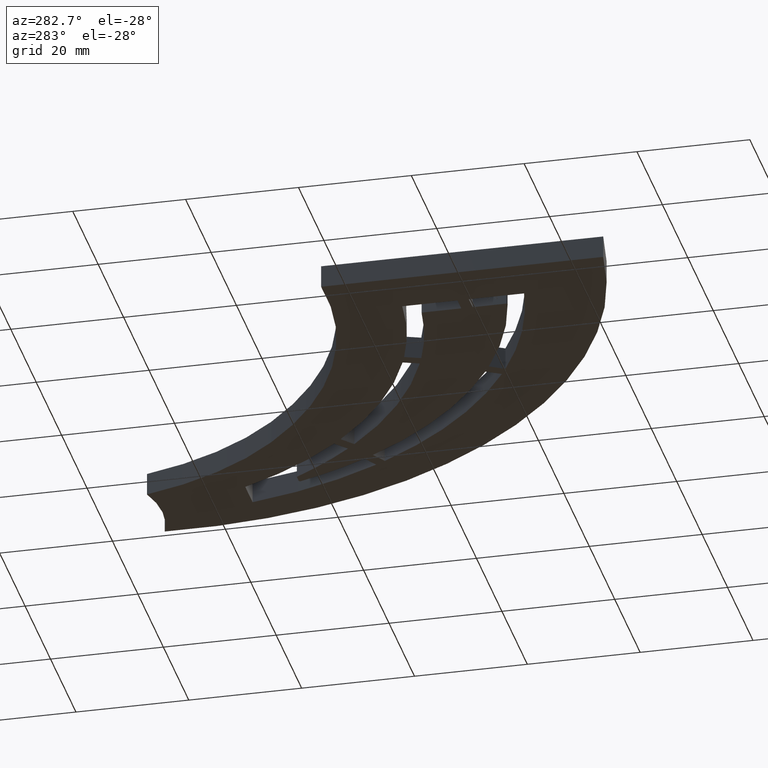
[diagram: clean part render]
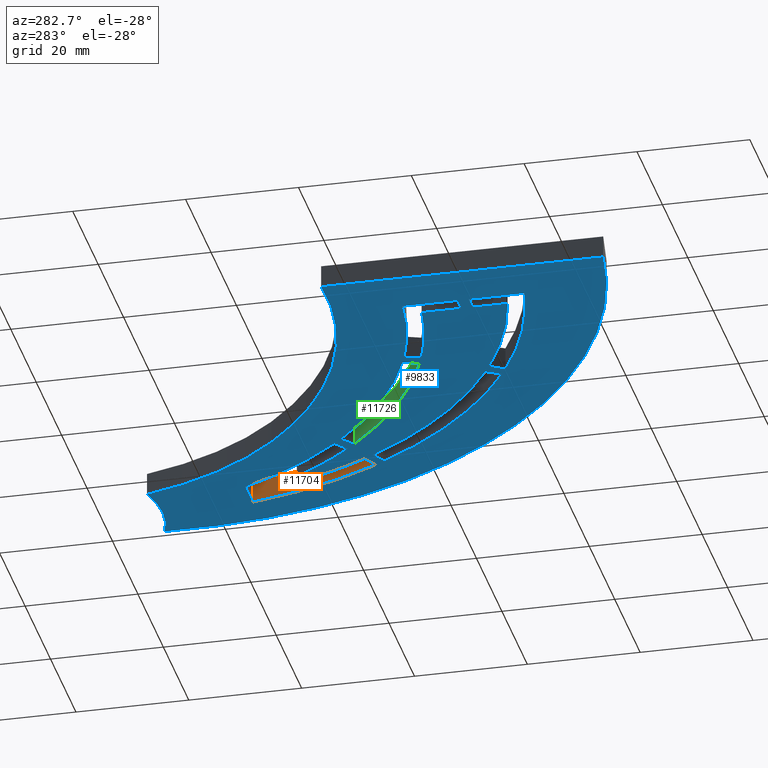
[diagram: same view with three faces highlighted in distinct colors, each labeled with its STEP entity id]
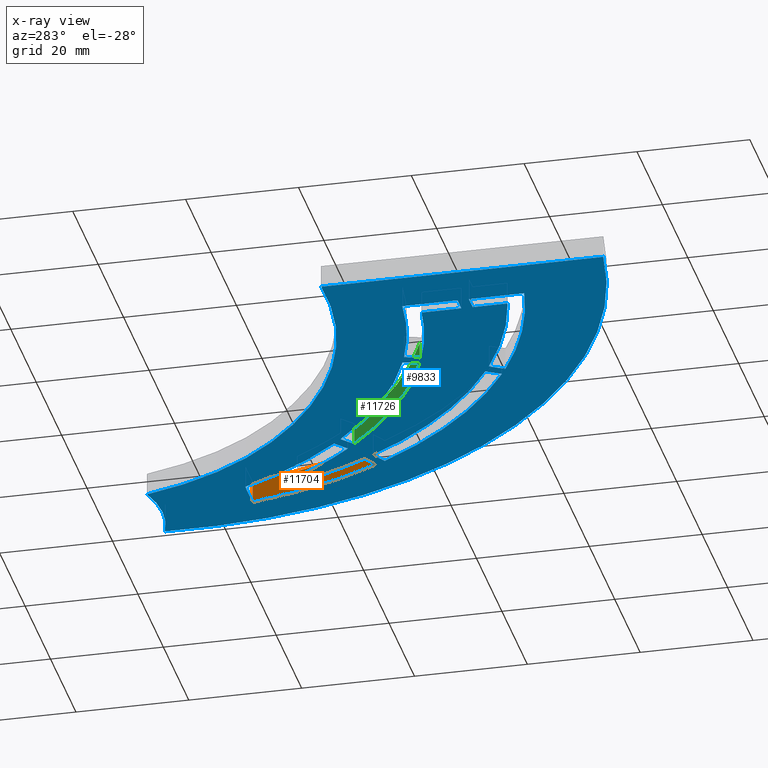
[diagram: x-ray of the same camera — body ghosted, the three highlighted faces saturated]
A machine part, auxiliary view with three faces highlighted in distinct colors.
The next image is the same camera in x-ray (body ghosted, the three faces saturated) — at least one of them is partly hidden behind the body in this view.
Their STEP definitions:

[orange] entity #11704 — the highlighted cylindrical surface (partial cylindrical patch) has radius 78.5 mm, axis along (-0, -0, -1).
#631 = EDGE_LOOP ( 'NONE', ( #7595, #1268, #2047, #3435 ) ) ;
#639 = CIRCLE ( 'NONE', #12659, 78.49999999999998579 ) ;
#908 = VECTOR ( 'NONE', #7900, 1000.000000000000000 ) ;
#1019 = EDGE_CURVE ( 'NONE', #8075, #1123, #7921, .T. ) ;
#1123 = VERTEX_POINT ( 'NONE', #12971 ) ;
#1251 = FACE_OUTER_BOUND ( 'NONE', #631, .T. ) ;
#1268 = ORIENTED_EDGE ( 'NONE', *, *, #1019, .F. ) ;
#1776 = DIRECTION ( 'NONE',  ( 1.000000000000000000, 0.000000000000000000, 0.000000000000000000 ) ) ;
#2047 = ORIENTED_EDGE ( 'NONE', *, *, #8481, .T. ) ;
#2723 = DIRECTION ( 'NONE',  ( 1.000000000000000000, 0.000000000000000000, 0.000000000000000000 ) ) ;
#2828 = CYLINDRICAL_SURFACE ( 'NONE', #5482, 78.49999999999998579 ) ;
#3435 = ORIENTED_EDGE ( 'NONE', *, *, #5704, .T. ) ;
#5081 = LINE ( 'NONE', #7545, #5390 ) ;
#5233 = CARTESIAN_POINT ( 'NONE',  ( -2.274320155918185815, 68.81855391245915143, 2.000000000000000000 ) ) ;
#5281 = DIRECTION ( 'NONE',  ( -0.000000000000000000, -0.000000000000000000, -1.000000000000000000 ) ) ;
#5390 = VECTOR ( 'NONE', #6410, 1000.000000000000000 ) ;
#5482 = AXIS2_PLACEMENT_3D ( 'NONE', #5233, #5281, #10392 ) ;
#5704 = EDGE_CURVE ( 'NONE', #11897, #12843, #5081, .T. ) ;
#5775 = DIRECTION ( 'NONE',  ( -0.000000000000000000, 0.000000000000000000, 1.000000000000000000 ) ) ;
#5805 = CARTESIAN_POINT ( 'NONE',  ( 74.81433309437242940, 54.00000000000000711, -2.000000000000000000 ) ) ;
#6410 = DIRECTION ( 'NONE',  ( -0.000000000000000000, -0.000000000000000000, -1.000000000000000000 ) ) ;
#6850 = DIRECTION ( 'NONE',  ( -0.000000000000000000, 0.000000000000000000, 1.000000000000000000 ) ) ;
#7001 = CARTESIAN_POINT ( 'NONE',  ( 74.81433309437242940, 54.00000000000000711, 2.000000000000000000 ) ) ;
#7545 = CARTESIAN_POINT ( 'NONE',  ( 74.81433309437242940, 54.00000000000000711, 2.000000000000000000 ) ) ;
#7595 = ORIENTED_EDGE ( 'NONE', *, *, #9235, .F. ) ;
#7725 = CARTESIAN_POINT ( 'NONE',  ( 66.00873501796486664, 30.09292446476082361, 2.000000000000000000 ) ) ;
#7855 = AXIS2_PLACEMENT_3D ( 'NONE', #12976, #6850, #1776 ) ;
#7900 = DIRECTION ( 'NONE',  ( -0.000000000000000000, -0.000000000000000000, -1.000000000000000000 ) ) ;
#7921 = LINE ( 'NONE', #7725, #908 ) ;
#8075 = VERTEX_POINT ( 'NONE', #12436 ) ;
#8481 = EDGE_CURVE ( 'NONE', #8075, #11897, #639, .T. ) ;
#9235 = EDGE_CURVE ( 'NONE', #1123, #12843, #9748, .T. ) ;
#9746 = CARTESIAN_POINT ( 'NONE',  ( -2.274320155918185815, 68.81855391245915143, 2.000000000000000000 ) ) ;
#9748 = CIRCLE ( 'NONE', #7855, 78.49999999999998579 ) ;
#10392 = DIRECTION ( 'NONE',  ( -1.000000000000000000, 0.000000000000000000, 0.000000000000000000 ) ) ;
#11704 = ADVANCED_FACE ( 'NONE', ( #1251 ), #2828, .F. ) ;
#11897 = VERTEX_POINT ( 'NONE', #7001 ) ;
#12436 = CARTESIAN_POINT ( 'NONE',  ( 66.00873501796486664, 30.09292446476082361, 2.000000000000000000 ) ) ;
#12659 = AXIS2_PLACEMENT_3D ( 'NONE', #9746, #5775, #2723 ) ;
#12843 = VERTEX_POINT ( 'NONE', #5805 ) ;
#12971 = CARTESIAN_POINT ( 'NONE',  ( 66.00873501796486664, 30.09292446476082361, -2.000000000000000000 ) ) ;
#12976 = CARTESIAN_POINT ( 'NONE',  ( -2.274320155918185815, 68.81855391245915143, -2.000000000000000000 ) ) ;

[blue] entity #9833 — the highlighted planar face has unit normal (-0, 0, 1).
#18 = CARTESIAN_POINT ( 'NONE',  ( 10.09999999999999964, 3.100000000000001865, -2.000000000000000000 ) ) ;
#63 = EDGE_CURVE ( 'NONE', #2170, #1277, #8363, .T. ) ;
#123 = ORIENTED_EDGE ( 'NONE', *, *, #7916, .F. ) ;
#128 = LINE ( 'NONE', #9469, #6667 ) ;
#152 = CARTESIAN_POINT ( 'NONE',  ( 34.99996197542167664, 3.161277910388546442, -2.000000000000000000 ) ) ;
#155 = EDGE_CURVE ( 'NONE', #8738, #11945, #6466, .T. ) ;
#161 = CIRCLE ( 'NONE', #4793, 72.99999999999998579 ) ;
#182 = DIRECTION ( 'NONE',  ( 0.7683469671253021493, -0.6400335445188398698, 0.000000000000000000 ) ) ;
#268 = VERTEX_POINT ( 'NONE', #18 ) ;
#312 = ORIENTED_EDGE ( 'NONE', *, *, #5632, .T. ) ;
#321 = LINE ( 'NONE', #2803, #5441 ) ;
#341 = VERTEX_POINT ( 'NONE', #2160 ) ;
#409 = ORIENTED_EDGE ( 'NONE', *, *, #5616, .F. ) ;
#428 = VERTEX_POINT ( 'NONE', #152 ) ;
#507 = EDGE_CURVE ( 'NONE', #11223, #7141, #6144, .T. ) ;
#547 = VERTEX_POINT ( 'NONE', #10704 ) ;
#586 = CARTESIAN_POINT ( 'NONE',  ( 3.879352446742994065, 94.89242179660072907, -2.000000000000000000 ) ) ;
#771 = VERTEX_POINT ( 'NONE', #953 ) ;
#787 = FACE_BOUND ( 'NONE', #3309, .T. ) ;
#879 = CARTESIAN_POINT ( 'NONE',  ( 10.09999999999999964, 1.100000000000000311, -2.000000000000000000 ) ) ;
#894 = CIRCLE ( 'NONE', #11917, 73.00000000000001421 ) ;
#944 = CARTESIAN_POINT ( 'NONE',  ( 10.09999999999999787, 12.90000000000000391, -2.000000000000000000 ) ) ;
#953 = CARTESIAN_POINT ( 'NONE',  ( 68.00000000000000000, 71.18900302333739205, -2.000000000000000000 ) ) ;
#1039 = DIRECTION ( 'NONE',  ( -0.000000000000000000, 0.000000000000000000, 1.000000000000000000 ) ) ;
#1123 = VERTEX_POINT ( 'NONE', #12971 ) ;
#1185 = VERTEX_POINT ( 'NONE', #879 ) ;
#1209 = ORIENTED_EDGE ( 'NONE', *, *, #3842, .F. ) ;
#1226 = CIRCLE ( 'NONE', #9149, 0.2500000000000366374 ) ;
#1230 = ORIENTED_EDGE ( 'NONE', *, *, #9235, .T. ) ;
#1277 = VERTEX_POINT ( 'NONE', #3913 ) ;
#1290 = VECTOR ( 'NONE', #11015, 1000.000000000000000 ) ;
#1292 = CARTESIAN_POINT ( 'NONE',  ( 68.85196653942389844, 44.50000000000000000, -2.000000000000000000 ) ) ;
#1309 = DIRECTION ( 'NONE',  ( -0.5000000000000017764, 0.8660254037844377084, 0.000000000000000000 ) ) ;
#1357 = CARTESIAN_POINT ( 'NONE',  ( 59.17939240146328927, 33.60345363278328534, -2.000000000000000000 ) ) ;
#1419 = CARTESIAN_POINT ( 'NONE',  ( 2.302567471051777078E-13, 44.50000000000035527, -2.000000000000000000 ) ) ;
#1512 = EDGE_CURVE ( 'NONE', #12463, #10071, #12709, .T. ) ;
#1587 = FACE_BOUND ( 'NONE', #3474, .T. ) ;
#1588 = EDGE_LOOP ( 'NONE', ( #409, #12648, #1209, #7709 ) ) ;
#1614 = DIRECTION ( 'NONE',  ( 1.000000000000000000, 0.000000000000000000, 0.000000000000000000 ) ) ;
#1620 = AXIS2_PLACEMENT_3D ( 'NONE', #11869, #11783, #1670 ) ;
#1634 = VERTEX_POINT ( 'NONE', #2695 ) ;
#1670 = DIRECTION ( 'NONE',  ( 1.000000000000000000, 0.000000000000000000, 0.000000000000000000 ) ) ;
#1690 = EDGE_CURVE ( 'NONE', #5425, #4534, #894, .T. ) ;
#1734 = ORIENTED_EDGE ( 'NONE', *, *, #4597, .T. ) ;
#1741 = CARTESIAN_POINT ( 'NONE',  ( -2.274320155918185815, 68.81855391245915143, -2.000000000000000000 ) ) ;
#1776 = DIRECTION ( 'NONE',  ( 1.000000000000000000, 0.000000000000000000, 0.000000000000000000 ) ) ;
#1835 = DIRECTION ( 'NONE',  ( 1.000000000000000000, 0.000000000000000000, 0.000000000000000000 ) ) ;
#1874 = VECTOR ( 'NONE', #2192, 1000.000000000000000 ) ;
#1898 = EDGE_CURVE ( 'NONE', #11223, #1123, #10989, .T. ) ;
#1992 = DIRECTION ( 'NONE',  ( 0.3453912201918108438, -0.9384587923901678286, 0.000000000000000000 ) ) ;
#2050 = ORIENTED_EDGE ( 'NONE', *, *, #5572, .F. ) ;
#2072 = CARTESIAN_POINT ( 'NONE',  ( 13.40190804038342876, -5.036072685718692377, -2.000000000000000000 ) ) ;
#2160 = CARTESIAN_POINT ( 'NONE',  ( 30.29382913315705039, 17.38689430305788974, -2.000000000000000000 ) ) ;
#2170 = VERTEX_POINT ( 'NONE', #8025 ) ;
#2179 = DIRECTION ( 'NONE',  ( 1.000000000000000000, 0.000000000000000000, 0.000000000000000000 ) ) ;
#2192 = DIRECTION ( 'NONE',  ( 3.325309274636090619E-14, 1.000000000000000000, 0.000000000000000000 ) ) ;
#2265 = PLANE ( 'NONE',  #9933 ) ;
#2268 = EDGE_CURVE ( 'NONE', #11491, #6599, #12568, .T. ) ;
#2281 = EDGE_CURVE ( 'NONE', #11894, #9217, #8250, .T. ) ;
#2340 = CARTESIAN_POINT ( 'NONE',  ( 55.50000000000000000, 34.06539931041405112, -2.000000000000000000 ) ) ;
#2370 = EDGE_CURVE ( 'NONE', #7141, #7613, #7756, .T. ) ;
#2390 = CARTESIAN_POINT ( 'NONE',  ( 31.33010419547926872, 14.57124240828424711, -2.000000000000000000 ) ) ;
#2421 = VERTEX_POINT ( 'NONE', #10512 ) ;
#2453 = DIRECTION ( 'NONE',  ( 1.000000000000000000, 1.445602896647341382E-16, 0.000000000000000000 ) ) ;
#2469 = VECTOR ( 'NONE', #1992, 1000.000000000000114 ) ;
#2503 = DIRECTION ( 'NONE',  ( 1.000000000000000000, 0.000000000000000000, 0.000000000000000000 ) ) ;
#2630 = LINE ( 'NONE', #11265, #11438 ) ;
#2643 = CIRCLE ( 'NONE', #11114, 75.50000000277351830 ) ;
#2660 = VECTOR ( 'NONE', #182, 1000.000000000000000 ) ;
#2695 = CARTESIAN_POINT ( 'NONE',  ( 69.01433309437241803, 54.00000000000000711, -2.000000000000000000 ) ) ;
#2696 = DIRECTION ( 'NONE',  ( 3.552713678800588651E-14, 1.000000000000000000, 0.000000000000000000 ) ) ;
#2704 = CARTESIAN_POINT ( 'NONE',  ( 13.10000000000022169, 9.933913978657852084, -2.000000000000000000 ) ) ;
#2711 = FACE_BOUND ( 'NONE', #8682, .T. ) ;
#2751 = DIRECTION ( 'NONE',  ( 1.000000000000000000, 0.000000000000000000, 0.000000000000000000 ) ) ;
#2784 = EDGE_CURVE ( 'NONE', #8738, #3568, #1226, .T. ) ;
#2803 = CARTESIAN_POINT ( 'NONE',  ( -0.000000000000000000, 54.00000000000000711, -2.000000000000000000 ) ) ;
#2810 = ORIENTED_EDGE ( 'NONE', *, *, #11713, .T. ) ;
#2844 = ORIENTED_EDGE ( 'NONE', *, *, #2281, .T. ) ;
#3181 = EDGE_LOOP ( 'NONE', ( #9830, #4314, #8566, #2050, #7580 ) ) ;
#3227 = VERTEX_POINT ( 'NONE', #9621 ) ;
#3309 = EDGE_LOOP ( 'NONE', ( #8184, #5741, #10891, #123, #6051, #2844, #8240 ) ) ;
#3321 = EDGE_CURVE ( 'NONE', #8354, #12463, #9995, .T. ) ;
#3382 = CARTESIAN_POINT ( 'NONE',  ( 67.29820635819267238, 44.38132052877488576, -2.000000000000000000 ) ) ;
#3389 = CARTESIAN_POINT ( 'NONE',  ( 67.51093839320922996, 44.24999999999997868, -2.000000000000000000 ) ) ;
#3467 = EDGE_CURVE ( 'NONE', #3568, #428, #2643, .T. ) ;
#3474 = EDGE_LOOP ( 'NONE', ( #6678, #5207, #12664, #5112 ) ) ;
#3521 = DIRECTION ( 'NONE',  ( 1.000000000000000000, -5.174308923711817413E-15, 0.000000000000000000 ) ) ;
#3534 = LINE ( 'NONE', #13276, #4022 ) ;
#3568 = VERTEX_POINT ( 'NONE', #2072 ) ;
#3615 = CARTESIAN_POINT ( 'NONE',  ( -4.481368979606760207E-16, 3.100000000000000977, -2.000000000000000000 ) ) ;
#3670 = LINE ( 'NONE', #10870, #10869 ) ;
#3729 = DIRECTION ( 'NONE',  ( -3.739439842733181748E-14, 1.000000000000000000, 0.000000000000000000 ) ) ;
#3776 = CARTESIAN_POINT ( 'NONE',  ( -2.274320155918185815, 68.81855391245915143, -2.000000000000000000 ) ) ;
#3836 = DIRECTION ( 'NONE',  ( -0.000000000000000000, 0.000000000000000000, 1.000000000000000000 ) ) ;
#3841 = CARTESIAN_POINT ( 'NONE',  ( 14.61404249810564338, 84.41547426875771976, -2.000000000000000000 ) ) ;
#3842 = EDGE_CURVE ( 'NONE', #3227, #1277, #2630, .T. ) ;
#3913 = CARTESIAN_POINT ( 'NONE',  ( 65.00000000000001421, 28.36591682216534593, -2.000000000000000000 ) ) ;
#4022 = VECTOR ( 'NONE', #2179, 1000.000000000000000 ) ;
#4141 = CIRCLE ( 'NONE', #8300, 21.19999999999999574 ) ;
#4314 = ORIENTED_EDGE ( 'NONE', *, *, #4407, .T. ) ;
#4328 = CARTESIAN_POINT ( 'NONE',  ( 13.35000000000025189, -4.791520942025062624, -2.000000000000000000 ) ) ;
#4407 = EDGE_CURVE ( 'NONE', #10071, #771, #10636, .T. ) ;
#4416 = VECTOR ( 'NONE', #2696, 1000.000000000000000 ) ;
#4442 = LINE ( 'NONE', #12145, #9206 ) ;
#4444 = CARTESIAN_POINT ( 'NONE',  ( 28.41691154838158795, 16.69611186267583491, -2.000000000000000000 ) ) ;
#4459 = EDGE_CURVE ( 'NONE', #9568, #6599, #11099, .T. ) ;
#4480 = CARTESIAN_POINT ( 'NONE',  ( 13.32211758407314939, 10.18235425494592938, -2.000000000000000000 ) ) ;
#4503 = DIRECTION ( 'NONE',  ( -0.000000000000000000, 0.000000000000000000, 1.000000000000000000 ) ) ;
#4523 = AXIS2_PLACEMENT_3D ( 'NONE', #3841, #10992, #2751 ) ;
#4525 = CARTESIAN_POINT ( 'NONE',  ( 27.61884497097577551, 15.94574757869942871, -2.000000000000000000 ) ) ;
#4534 = VERTEX_POINT ( 'NONE', #3382 ) ;
#4597 = EDGE_CURVE ( 'NONE', #9468, #7613, #12529, .T. ) ;
#4634 = EDGE_CURVE ( 'NONE', #10240, #7697, #7566, .T. ) ;
#4635 = LINE ( 'NONE', #5826, #1290 ) ;
#4661 = CARTESIAN_POINT ( 'NONE',  ( 1.110223024625135740E-12, -3.944304526105082560E-26, -2.000000000000000000 ) ) ;
#4687 = AXIS2_PLACEMENT_3D ( 'NONE', #6730, #4826, #10918 ) ;
#4699 = CARTESIAN_POINT ( 'NONE',  ( 56.87206340631111345, 35.52546025000667385, -2.000000000000000000 ) ) ;
#4790 = FACE_BOUND ( 'NONE', #8525, .T. ) ;
#4793 = AXIS2_PLACEMENT_3D ( 'NONE', #8804, #5749, #7651 ) ;
#4826 = DIRECTION ( 'NONE',  ( -0.000000000000000000, 0.000000000000000000, 1.000000000000000000 ) ) ;
#4853 = ORIENTED_EDGE ( 'NONE', *, *, #3467, .F. ) ;
#4872 = DIRECTION ( 'NONE',  ( -0.000000000000000000, 0.000000000000000000, 1.000000000000000000 ) ) ;
#4911 = DIRECTION ( 'NONE',  ( -0.000000000000000000, 0.000000000000000000, 1.000000000000000000 ) ) ;
#4933 = CARTESIAN_POINT ( 'NONE',  ( 5.180452133363093736, 82.72691493104838401, -2.000000000000000000 ) ) ;
#4971 = EDGE_CURVE ( 'NONE', #268, #11894, #7867, .T. ) ;
#5094 = EDGE_CURVE ( 'NONE', #5263, #3227, #10305, .T. ) ;
#5112 = ORIENTED_EDGE ( 'NONE', *, *, #5200, .T. ) ;
#5200 = EDGE_CURVE ( 'NONE', #341, #9568, #11255, .T. ) ;
#5206 = ORIENTED_EDGE ( 'NONE', *, *, #10230, .T. ) ;
#5207 = ORIENTED_EDGE ( 'NONE', *, *, #2268, .F. ) ;
#5218 = VERTEX_POINT ( 'NONE', #4480 ) ;
#5244 = AXIS2_PLACEMENT_3D ( 'NONE', #586, #4503, #12649 ) ;
#5263 = VERTEX_POINT ( 'NONE', #11534 ) ;
#5301 = AXIS2_PLACEMENT_3D ( 'NONE', #1741, #3836, #7873 ) ;
#5311 = DIRECTION ( 'NONE',  ( -0.000000000000000000, 0.000000000000000000, 1.000000000000000000 ) ) ;
#5415 = DIRECTION ( 'NONE',  ( -0.5000000000000005551, 0.8660254037844382635, 0.000000000000000000 ) ) ;
#5425 = VERTEX_POINT ( 'NONE', #1357 ) ;
#5429 = FACE_OUTER_BOUND ( 'NONE', #3181, .T. ) ;
#5441 = VECTOR ( 'NONE', #11079, 1000.000000000000000 ) ;
#5572 = EDGE_CURVE ( 'NONE', #8354, #2421, #11479, .T. ) ;
#5575 = AXIS2_PLACEMENT_3D ( 'NONE', #7446, #7365, #8380 ) ;
#5616 = EDGE_CURVE ( 'NONE', #2170, #5263, #4442, .T. ) ;
#5632 = EDGE_CURVE ( 'NONE', #547, #7888, #11949, .T. ) ;
#5640 = CARTESIAN_POINT ( 'NONE',  ( -2.274320155918185815, 68.81855391245915143, -2.000000000000000000 ) ) ;
#5702 = CARTESIAN_POINT ( 'NONE',  ( 0.000000000000000000, 0.000000000000000000, -2.000000000000000000 ) ) ;
#5712 = VECTOR ( 'NONE', #8065, 1000.000000000000000 ) ;
#5741 = ORIENTED_EDGE ( 'NONE', *, *, #4634, .F. ) ;
#5749 = DIRECTION ( 'NONE',  ( -0.000000000000000000, 0.000000000000000000, 1.000000000000000000 ) ) ;
#5805 = CARTESIAN_POINT ( 'NONE',  ( 74.81433309437242940, 54.00000000000000711, -2.000000000000000000 ) ) ;
#5826 = CARTESIAN_POINT ( 'NONE',  ( 10.09999999999999964, 1.787827255853647886E-15, -2.000000000000000000 ) ) ;
#5828 = DIRECTION ( 'NONE',  ( 1.000000000000000000, 0.000000000000000000, 0.000000000000000000 ) ) ;
#5869 = CARTESIAN_POINT ( 'NONE',  ( 1.998401444325281773E-12, 24.99999999999996803, -2.000000000000000000 ) ) ;
#5910 = CIRCLE ( 'NONE', #11828, 69.99999999999998579 ) ;
#5940 = ORIENTED_EDGE ( 'NONE', *, *, #155, .T. ) ;
#5976 = VECTOR ( 'NONE', #2453, 1000.000000000000000 ) ;
#6006 = DIRECTION ( 'NONE',  ( 1.000000000000000000, 0.000000000000000000, 0.000000000000000000 ) ) ;
#6051 = ORIENTED_EDGE ( 'NONE', *, *, #4971, .T. ) ;
#6072 = AXIS2_PLACEMENT_3D ( 'NONE', #5640, #6786, #1614 ) ;
#6144 = CIRCLE ( 'NONE', #6072, 75.50000000277351830 ) ;
#6266 = CARTESIAN_POINT ( 'NONE',  ( 39.48745065706042112, 47.40386376884549691, -2.000000000000000000 ) ) ;
#6375 = CARTESIAN_POINT ( 'NONE',  ( 29.45318661070406918, 13.88045996790233794, -2.000000000000000000 ) ) ;
#6388 = EDGE_CURVE ( 'NONE', #1185, #11945, #3534, .T. ) ;
#6452 = ORIENTED_EDGE ( 'NONE', *, *, #1690, .T. ) ;
#6466 = LINE ( 'NONE', #13068, #8676 ) ;
#6551 = DIRECTION ( 'NONE',  ( 1.000000000000000000, 0.000000000000000000, 0.000000000000000000 ) ) ;
#6569 = DIRECTION ( 'NONE',  ( -0.000000000000000000, 0.000000000000000000, 1.000000000000000000 ) ) ;
#6599 = VERTEX_POINT ( 'NONE', #10135 ) ;
#6667 = VECTOR ( 'NONE', #9375, 999.9999999999998863 ) ;
#6678 = ORIENTED_EDGE ( 'NONE', *, *, #4459, .T. ) ;
#6709 = ORIENTED_EDGE ( 'NONE', *, *, #6388, .F. ) ;
#6730 = CARTESIAN_POINT ( 'NONE',  ( -2.274320155918185815, 68.81855391245915143, -2.000000000000000000 ) ) ;
#6786 = DIRECTION ( 'NONE',  ( -0.000000000000000000, 0.000000000000000000, 1.000000000000000000 ) ) ;
#6803 = DIRECTION ( 'NONE',  ( -0.000000000000000000, 0.000000000000000000, 1.000000000000000000 ) ) ;
#6850 = DIRECTION ( 'NONE',  ( -0.000000000000000000, 0.000000000000000000, 1.000000000000000000 ) ) ;
#6997 = CARTESIAN_POINT ( 'NONE',  ( 5.180452133363093736, 82.72691493104838401, -2.000000000000000000 ) ) ;
#7049 = DIRECTION ( 'NONE',  ( -0.000000000000000000, 0.000000000000000000, 1.000000000000000000 ) ) ;
#7056 = ORIENTED_EDGE ( 'NONE', *, *, #12739, .F. ) ;
#7059 = CARTESIAN_POINT ( 'NONE',  ( 69.08826649521368779, 44.16837689730377292, -2.000000000000000000 ) ) ;
#7140 = ORIENTED_EDGE ( 'NONE', *, *, #507, .F. ) ;
#7141 = VERTEX_POINT ( 'NONE', #7059 ) ;
#7365 = DIRECTION ( 'NONE',  ( -0.000000000000000000, 0.000000000000000000, 1.000000000000000000 ) ) ;
#7446 = CARTESIAN_POINT ( 'NONE',  ( 5.180452133363093736, 82.72691493104838401, -2.000000000000000000 ) ) ;
#7566 = LINE ( 'NONE', #8093, #2469 ) ;
#7580 = ORIENTED_EDGE ( 'NONE', *, *, #3321, .T. ) ;
#7613 = VERTEX_POINT ( 'NONE', #1292 ) ;
#7651 = DIRECTION ( 'NONE',  ( 1.000000000000000000, 0.000000000000000000, 0.000000000000000000 ) ) ;
#7697 = VERTEX_POINT ( 'NONE', #6375 ) ;
#7709 = ORIENTED_EDGE ( 'NONE', *, *, #5094, .F. ) ;
#7756 = CIRCLE ( 'NONE', #9333, 0.2500000000000140998 ) ;
#7761 = DIRECTION ( 'NONE',  ( 1.000000000000000000, 0.000000000000000000, 0.000000000000000000 ) ) ;
#7828 = EDGE_CURVE ( 'NONE', #5218, #7697, #161, .T. ) ;
#7833 = EDGE_CURVE ( 'NONE', #5218, #9217, #8776, .T. ) ;
#7849 = ORIENTED_EDGE ( 'NONE', *, *, #2370, .F. ) ;
#7855 = AXIS2_PLACEMENT_3D ( 'NONE', #12976, #6850, #1776 ) ;
#7867 = LINE ( 'NONE', #3615, #5976 ) ;
#7873 = DIRECTION ( 'NONE',  ( 1.000000000000000000, 0.000000000000000000, 0.000000000000000000 ) ) ;
#7886 = CARTESIAN_POINT ( 'NONE',  ( 5.180452133363093736, 82.72691493104838401, -2.000000000000000000 ) ) ;
#7888 = VERTEX_POINT ( 'NONE', #10028 ) ;
#7916 = EDGE_CURVE ( 'NONE', #268, #13021, #4635, .T. ) ;
#8025 = CARTESIAN_POINT ( 'NONE',  ( 38.22629435678329912, 1.573106303765562597, -2.000000000000000000 ) ) ;
#8065 = DIRECTION ( 'NONE',  ( 0.8660254037844363761, -0.5000000000000041078, 0.000000000000000000 ) ) ;
#8087 = CARTESIAN_POINT ( 'NONE',  ( 53.97457268643530881, 45.99999999999996447, -2.000000000000000000 ) ) ;
#8093 = CARTESIAN_POINT ( 'NONE',  ( 30.43871474060331650, 11.20269202076643822, -2.000000000000000000 ) ) ;
#8119 = CARTESIAN_POINT ( 'NONE',  ( 13.10000000000000142, 1.100000000000000311, -2.000000000000000000 ) ) ;
#8184 = ORIENTED_EDGE ( 'NONE', *, *, #7828, .T. ) ;
#8227 = ORIENTED_EDGE ( 'NONE', *, *, #8581, .F. ) ;
#8240 = ORIENTED_EDGE ( 'NONE', *, *, #7833, .F. ) ;
#8250 = LINE ( 'NONE', #8253, #1874 ) ;
#8253 = CARTESIAN_POINT ( 'NONE',  ( 13.09999999999989306, -4.356155149773243477E-13, -2.000000000000000000 ) ) ;
#8300 = AXIS2_PLACEMENT_3D ( 'NONE', #10513, #8501, #11537 ) ;
#8344 = CARTESIAN_POINT ( 'NONE',  ( 67.51093839320922996, 44.50000000000000711, -2.000000000000000000 ) ) ;
#8345 = VECTOR ( 'NONE', #9465, 999.9999999999998863 ) ;
#8349 = DIRECTION ( 'NONE',  ( -0.000000000000000000, 0.000000000000000000, 1.000000000000000000 ) ) ;
#8354 = VERTEX_POINT ( 'NONE', #10827 ) ;
#8363 = CIRCLE ( 'NONE', #10873, 78.49999999999998579 ) ;
#8380 = DIRECTION ( 'NONE',  ( 1.000000000000000000, 0.000000000000000000, 0.000000000000000000 ) ) ;
#8466 = DIRECTION ( 'NONE',  ( 0.8660254037844365982, -0.5000000000000036637, 0.000000000000000000 ) ) ;
#8501 = DIRECTION ( 'NONE',  ( -0.000000000000000000, 0.000000000000000000, 1.000000000000000000 ) ) ;
#8514 = EDGE_CURVE ( 'NONE', #13021, #10240, #5910, .T. ) ;
#8525 = EDGE_LOOP ( 'NONE', ( #10103, #312, #5206, #4853, #11457, #5940, #6709 ) ) ;
#8542 = CIRCLE ( 'NONE', #12349, 70.00000000000000000 ) ;
#8566 = ORIENTED_EDGE ( 'NONE', *, *, #10611, .T. ) ;
#8581 = EDGE_CURVE ( 'NONE', #1634, #12843, #321, .T. ) ;
#8676 = VECTOR ( 'NONE', #3729, 1000.000000000000000 ) ;
#8682 = EDGE_LOOP ( 'NONE', ( #7140, #12300, #1230, #8227, #7056, #2810, #6452, #12598, #1734, #7849 ) ) ;
#8706 = EDGE_CURVE ( 'NONE', #9468, #4534, #10563, .T. ) ;
#8738 = VERTEX_POINT ( 'NONE', #11439 ) ;
#8776 = CIRCLE ( 'NONE', #1620, 0.2500000000000296985 ) ;
#8804 = CARTESIAN_POINT ( 'NONE',  ( 5.180452133363093736, 82.72691493104838401, -2.000000000000000000 ) ) ;
#8842 = CARTESIAN_POINT ( 'NONE',  ( 63.41057880476433439, 31.59297065384886949, -2.000000000000000000 ) ) ;
#9057 = AXIS2_PLACEMENT_3D ( 'NONE', #3389, #5311, #9463 ) ;
#9149 = AXIS2_PLACEMENT_3D ( 'NONE', #4328, #8349, #9393 ) ;
#9206 = VECTOR ( 'NONE', #1309, 999.9999999999998863 ) ;
#9217 = VERTEX_POINT ( 'NONE', #2704 ) ;
#9235 = EDGE_CURVE ( 'NONE', #1123, #12843, #9748, .T. ) ;
#9282 = CARTESIAN_POINT ( 'NONE',  ( 68.85196653942389844, 44.24999999999997868, -2.000000000000000000 ) ) ;
#9333 = AXIS2_PLACEMENT_3D ( 'NONE', #9282, #1039, #10257 ) ;
#9375 = DIRECTION ( 'NONE',  ( 0.7683469671252992628, -0.6400335445188434225, 0.000000000000000000 ) ) ;
#9393 = DIRECTION ( 'NONE',  ( 1.000000000000000000, 0.000000000000000000, 0.000000000000000000 ) ) ;
#9463 = DIRECTION ( 'NONE',  ( 1.000000000000000000, 0.000000000000000000, 0.000000000000000000 ) ) ;
#9465 = DIRECTION ( 'NONE',  ( 0.3453912201917184177, -0.9384587923902019124, 0.000000000000000000 ) ) ;
#9468 = VERTEX_POINT ( 'NONE', #8344 ) ;
#9469 = CARTESIAN_POINT ( 'NONE',  ( 40.76751774609838463, 48.94055770309599041, -2.000000000000000000 ) ) ;
#9568 = VERTEX_POINT ( 'NONE', #2390 ) ;
#9621 = CARTESIAN_POINT ( 'NONE',  ( 62.40149663089107435, 29.86616344181055283, -2.000000000000000000 ) ) ;
#9657 = AXIS2_PLACEMENT_3D ( 'NONE', #11180, #12072, #13144 ) ;
#9748 = CIRCLE ( 'NONE', #7855, 78.49999999999998579 ) ;
#9812 = VECTOR ( 'NONE', #3521, 1000.000000000000000 ) ;
#9830 = ORIENTED_EDGE ( 'NONE', *, *, #1512, .T. ) ;
#9833 = ADVANCED_FACE ( 'NONE', ( #4790, #5429, #787, #11987, #1587, #2711 ), #2265, .F. ) ;
#9933 = AXIS2_PLACEMENT_3D ( 'NONE', #5702, #11829, #6551 ) ;
#9964 = CARTESIAN_POINT ( 'NONE',  ( -2.274320155918185815, 68.81855391245915143, -2.000000000000000000 ) ) ;
#9995 = LINE ( 'NONE', #4661, #4416 ) ;
#10028 = CARTESIAN_POINT ( 'NONE',  ( 36.49999999999999289, 0.5631358385336567851, -2.000000000000000000 ) ) ;
#10071 = VERTEX_POINT ( 'NONE', #8087 ) ;
#10103 = ORIENTED_EDGE ( 'NONE', *, *, #10696, .F. ) ;
#10135 = CARTESIAN_POINT ( 'NONE',  ( 57.81112312110057871, 32.14023218370341795, -2.000000000000000000 ) ) ;
#10230 = EDGE_CURVE ( 'NONE', #7888, #428, #10553, .T. ) ;
#10240 = VERTEX_POINT ( 'NONE', #4444 ) ;
#10257 = DIRECTION ( 'NONE',  ( 1.000000000000000000, 0.000000000000000000, 0.000000000000000000 ) ) ;
#10305 = CIRCLE ( 'NONE', #5301, 75.50000000277350409 ) ;
#10512 = CARTESIAN_POINT ( 'NONE',  ( 81.99999999999997158, 71.18900302333739205, -2.000000000000000000 ) ) ;
#10513 = CARTESIAN_POINT ( 'NONE',  ( 74.99999999999998579, 91.20000000000000284, -2.000000000000000000 ) ) ;
#10553 = LINE ( 'NONE', #4525, #10701 ) ;
#10563 = CIRCLE ( 'NONE', #9057, 0.2500000000000279776 ) ;
#10611 = EDGE_CURVE ( 'NONE', #771, #2421, #4141, .T. ) ;
#10636 = CIRCLE ( 'NONE', #4523, 55.00000000000000711 ) ;
#10696 = EDGE_CURVE ( 'NONE', #547, #1185, #3670, .T. ) ;
#10701 = VECTOR ( 'NONE', #5415, 1000.000000000000114 ) ;
#10704 = CARTESIAN_POINT ( 'NONE',  ( 10.09999999999999964, -8.700000000000001066, -2.000000000000000000 ) ) ;
#10769 = DIRECTION ( 'NONE',  ( 0.000000000000000000, 1.000000000000000000, -0.000000000000000000 ) ) ;
#10827 = CARTESIAN_POINT ( 'NONE',  ( 2.220446049250313081E-13, -24.99999999999879918, -2.000000000000000000 ) ) ;
#10869 = VECTOR ( 'NONE', #10769, 1000.000000000000000 ) ;
#10870 = CARTESIAN_POINT ( 'NONE',  ( 10.09999999999999964, 0.000000000000000000, -2.000000000000000000 ) ) ;
#10873 = AXIS2_PLACEMENT_3D ( 'NONE', #3776, #6803, #5828 ) ;
#10891 = ORIENTED_EDGE ( 'NONE', *, *, #8514, .F. ) ;
#10918 = DIRECTION ( 'NONE',  ( 1.000000000000000000, 0.000000000000000000, 0.000000000000000000 ) ) ;
#10936 = AXIS2_PLACEMENT_3D ( 'NONE', #6997, #4911, #11119 ) ;
#10989 = LINE ( 'NONE', #13176, #5712 ) ;
#10992 = DIRECTION ( 'NONE',  ( -0.000000000000000000, 0.000000000000000000, 1.000000000000000000 ) ) ;
#11015 = DIRECTION ( 'NONE',  ( -1.770125995894700956E-16, 1.000000000000000000, 0.000000000000000000 ) ) ;
#11079 = DIRECTION ( 'NONE',  ( 1.000000000000000000, 0.000000000000000000, 0.000000000000000000 ) ) ;
#11099 = CIRCLE ( 'NONE', #10936, 73.00000000000001421 ) ;
#11114 = AXIS2_PLACEMENT_3D ( 'NONE', #9964, #4872, #7761 ) ;
#11119 = DIRECTION ( 'NONE',  ( 1.000000000000000000, 0.000000000000000000, 0.000000000000000000 ) ) ;
#11180 = CARTESIAN_POINT ( 'NONE',  ( -9.878794471127335441, 66.46807869304582539, -2.000000000000000000 ) ) ;
#11223 = VERTEX_POINT ( 'NONE', #8842 ) ;
#11255 = LINE ( 'NONE', #12665, #8345 ) ;
#11265 = CARTESIAN_POINT ( 'NONE',  ( 28.53280228481606784, 49.42026323961830059, -2.000000000000000000 ) ) ;
#11438 = VECTOR ( 'NONE', #8466, 1000.000000000000000 ) ;
#11439 = CARTESIAN_POINT ( 'NONE',  ( 13.10000000000022169, -4.791520942025062624, -2.000000000000000000 ) ) ;
#11457 = ORIENTED_EDGE ( 'NONE', *, *, #2784, .F. ) ;
#11479 = CIRCLE ( 'NONE', #9657, 91.99999999999938893 ) ;
#11491 = VERTEX_POINT ( 'NONE', #2340 ) ;
#11534 = CARTESIAN_POINT ( 'NONE',  ( 36.72602755165311095, 4.171644635160063785, -2.000000000000000000 ) ) ;
#11537 = DIRECTION ( 'NONE',  ( 1.000000000000000000, 0.000000000000000000, 0.000000000000000000 ) ) ;
#11713 = EDGE_CURVE ( 'NONE', #12440, #5425, #128, .T. ) ;
#11764 = EDGE_CURVE ( 'NONE', #341, #11491, #12433, .T. ) ;
#11783 = DIRECTION ( 'NONE',  ( -0.000000000000000000, 0.000000000000000000, 1.000000000000000000 ) ) ;
#11828 = AXIS2_PLACEMENT_3D ( 'NONE', #7886, #7049, #1835 ) ;
#11829 = DIRECTION ( 'NONE',  ( -0.000000000000000000, 0.000000000000000000, 1.000000000000000000 ) ) ;
#11853 = CARTESIAN_POINT ( 'NONE',  ( 13.09999999999999609, 3.100000000000002309, -2.000000000000000000 ) ) ;
#11869 = CARTESIAN_POINT ( 'NONE',  ( 13.35000000000025011, 9.933913978657852084, -2.000000000000000000 ) ) ;
#11894 = VERTEX_POINT ( 'NONE', #11853 ) ;
#11917 = AXIS2_PLACEMENT_3D ( 'NONE', #4933, #12137, #6006 ) ;
#11945 = VERTEX_POINT ( 'NONE', #8119 ) ;
#11949 = CIRCLE ( 'NONE', #4687, 78.50000000000000000 ) ;
#11987 = FACE_BOUND ( 'NONE', #1588, .T. ) ;
#12072 = DIRECTION ( 'NONE',  ( -0.000000000000000000, 0.000000000000000000, 1.000000000000000000 ) ) ;
#12137 = DIRECTION ( 'NONE',  ( -0.000000000000000000, 0.000000000000000000, 1.000000000000000000 ) ) ;
#12145 = CARTESIAN_POINT ( 'NONE',  ( 29.35089577854461496, 16.94574757869946424, -2.000000000000000000 ) ) ;
#12300 = ORIENTED_EDGE ( 'NONE', *, *, #1898, .T. ) ;
#12349 = AXIS2_PLACEMENT_3D ( 'NONE', #12671, #6569, #2503 ) ;
#12433 = CIRCLE ( 'NONE', #5575, 70.00000000000002842 ) ;
#12440 = VERTEX_POINT ( 'NONE', #4699 ) ;
#12463 = VERTEX_POINT ( 'NONE', #5869 ) ;
#12529 = LINE ( 'NONE', #1419, #9812 ) ;
#12568 = LINE ( 'NONE', #6266, #2660 ) ;
#12598 = ORIENTED_EDGE ( 'NONE', *, *, #8706, .F. ) ;
#12648 = ORIENTED_EDGE ( 'NONE', *, *, #63, .T. ) ;
#12649 = DIRECTION ( 'NONE',  ( 1.000000000000000000, 0.000000000000000000, 0.000000000000000000 ) ) ;
#12664 = ORIENTED_EDGE ( 'NONE', *, *, #11764, .F. ) ;
#12665 = CARTESIAN_POINT ( 'NONE',  ( 32.31563232537948238, 11.89347446114490836, -2.000000000000000000 ) ) ;
#12671 = CARTESIAN_POINT ( 'NONE',  ( 5.180452133363093736, 82.72691493104838401, -2.000000000000000000 ) ) ;
#12709 = CIRCLE ( 'NONE', #5244, 69.99999999999997158 ) ;
#12739 = EDGE_CURVE ( 'NONE', #12440, #1634, #8542, .T. ) ;
#12843 = VERTEX_POINT ( 'NONE', #5805 ) ;
#12971 = CARTESIAN_POINT ( 'NONE',  ( 66.00873501796486664, 30.09292446476082361, -2.000000000000000000 ) ) ;
#12976 = CARTESIAN_POINT ( 'NONE',  ( -2.274320155918185815, 68.81855391245915143, -2.000000000000000000 ) ) ;
#13021 = VERTEX_POINT ( 'NONE', #944 ) ;
#13068 = CARTESIAN_POINT ( 'NONE',  ( 13.10000000000004228, 4.898666193980483286E-13, -2.000000000000000000 ) ) ;
#13144 = DIRECTION ( 'NONE',  ( 1.000000000000000000, 0.000000000000000000, 0.000000000000000000 ) ) ;
#13176 = CARTESIAN_POINT ( 'NONE',  ( 29.53280228481610692, 51.15231404718716846, -2.000000000000000000 ) ) ;
#13276 = CARTESIAN_POINT ( 'NONE',  ( -0.000000000000000000, 1.100000000000000311, -2.000000000000000000 ) ) ;

[green] entity #11726 — the highlighted cylindrical surface (partial cylindrical patch) has radius 73 mm, axis along (-0, -0, -1).
#41 = DIRECTION ( 'NONE',  ( 1.000000000000000000, 0.000000000000000000, 0.000000000000000000 ) ) ;
#692 = EDGE_LOOP ( 'NONE', ( #9014, #12747, #10349, #7489 ) ) ;
#804 = CARTESIAN_POINT ( 'NONE',  ( 57.81112312110057871, 32.14023218370341795, 2.000000000000000000 ) ) ;
#1324 = DIRECTION ( 'NONE',  ( -0.000000000000000000, -0.000000000000000000, -1.000000000000000000 ) ) ;
#1556 = LINE ( 'NONE', #12483, #5080 ) ;
#1699 = LINE ( 'NONE', #9467, #12097 ) ;
#2389 = EDGE_CURVE ( 'NONE', #12120, #4437, #5542, .T. ) ;
#2390 = CARTESIAN_POINT ( 'NONE',  ( 31.33010419547926872, 14.57124240828424711, -2.000000000000000000 ) ) ;
#2427 = EDGE_CURVE ( 'NONE', #12120, #9568, #1699, .T. ) ;
#3174 = DIRECTION ( 'NONE',  ( -0.000000000000000000, 0.000000000000000000, 1.000000000000000000 ) ) ;
#3258 = CARTESIAN_POINT ( 'NONE',  ( 5.180452133363093736, 82.72691493104838401, 2.000000000000000000 ) ) ;
#4046 = CARTESIAN_POINT ( 'NONE',  ( 31.33010419547926872, 14.57124240828424711, 2.000000000000000000 ) ) ;
#4309 = DIRECTION ( 'NONE',  ( -0.000000000000000000, -0.000000000000000000, -1.000000000000000000 ) ) ;
#4437 = VERTEX_POINT ( 'NONE', #804 ) ;
#4459 = EDGE_CURVE ( 'NONE', #9568, #6599, #11099, .T. ) ;
#4911 = DIRECTION ( 'NONE',  ( -0.000000000000000000, 0.000000000000000000, 1.000000000000000000 ) ) ;
#5080 = VECTOR ( 'NONE', #1324, 1000.000000000000000 ) ;
#5542 = CIRCLE ( 'NONE', #10129, 73.00000000000001421 ) ;
#5759 = AXIS2_PLACEMENT_3D ( 'NONE', #3258, #4309, #11447 ) ;
#6042 = FACE_OUTER_BOUND ( 'NONE', #692, .T. ) ;
#6176 = CARTESIAN_POINT ( 'NONE',  ( 5.180452133363093736, 82.72691493104838401, 2.000000000000000000 ) ) ;
#6599 = VERTEX_POINT ( 'NONE', #10135 ) ;
#6997 = CARTESIAN_POINT ( 'NONE',  ( 5.180452133363093736, 82.72691493104838401, -2.000000000000000000 ) ) ;
#7489 = ORIENTED_EDGE ( 'NONE', *, *, #11490, .T. ) ;
#8568 = CYLINDRICAL_SURFACE ( 'NONE', #5759, 73.00000000000001421 ) ;
#9014 = ORIENTED_EDGE ( 'NONE', *, *, #4459, .F. ) ;
#9467 = CARTESIAN_POINT ( 'NONE',  ( 31.33010419547926872, 14.57124240828424711, 2.000000000000000000 ) ) ;
#9568 = VERTEX_POINT ( 'NONE', #2390 ) ;
#9873 = DIRECTION ( 'NONE',  ( -0.000000000000000000, -0.000000000000000000, -1.000000000000000000 ) ) ;
#10129 = AXIS2_PLACEMENT_3D ( 'NONE', #6176, #3174, #41 ) ;
#10135 = CARTESIAN_POINT ( 'NONE',  ( 57.81112312110057871, 32.14023218370341795, -2.000000000000000000 ) ) ;
#10349 = ORIENTED_EDGE ( 'NONE', *, *, #2389, .T. ) ;
#10936 = AXIS2_PLACEMENT_3D ( 'NONE', #6997, #4911, #11119 ) ;
#11099 = CIRCLE ( 'NONE', #10936, 73.00000000000001421 ) ;
#11119 = DIRECTION ( 'NONE',  ( 1.000000000000000000, 0.000000000000000000, 0.000000000000000000 ) ) ;
#11447 = DIRECTION ( 'NONE',  ( -1.000000000000000000, 0.000000000000000000, 0.000000000000000000 ) ) ;
#11490 = EDGE_CURVE ( 'NONE', #4437, #6599, #1556, .T. ) ;
#11726 = ADVANCED_FACE ( 'NONE', ( #6042 ), #8568, .F. ) ;
#12097 = VECTOR ( 'NONE', #9873, 1000.000000000000000 ) ;
#12120 = VERTEX_POINT ( 'NONE', #4046 ) ;
#12483 = CARTESIAN_POINT ( 'NONE',  ( 57.81112312110057871, 32.14023218370341795, 2.000000000000000000 ) ) ;
#12747 = ORIENTED_EDGE ( 'NONE', *, *, #2427, .F. ) ;